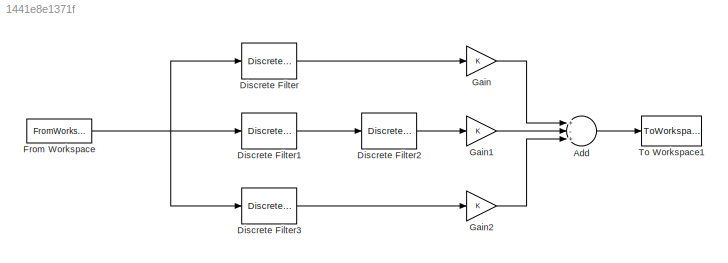
MODEL slx_1441e8e1371f
KIND model
CONFIG AbsTol = auto
CONFIG FixedStep = auto
CONFIG MaxStep = auto
CONFIG MinStep = auto
CONFIG RelTol = 1e-3
CONFIG SampleTimeConstraint = Unconstrained
CONFIG Solver = ode45
CONFIG SolverMode = Auto
CONFIG SolverName = ode45
CONFIG StartTime = 0.0
CONFIG StopTime = 10.0
BLOCK [Sum] Add
  InputSameDT = off
  Inputs = +-+
  OutDataTypeStr = Inherit: Inherit via internal rule
  Ports = [3, 1]
  SaturateOnIntegerOverflow = off
BLOCK [DiscreteFilter] Discrete Filter
  Denominator = denF1
  FilterStructure = Direct form I
  InputPortMap = u0
  InputProcessing = Columns as channels (frame based)
  Numerator = numF1
  Ports = [1, 1]
  SampleTime = 44100
BLOCK [DiscreteFilter] Discrete Filter1
  Denominator = denF2
  FilterStructure = Direct form I
  InputPortMap = u0
  InputProcessing = Columns as channels (frame based)
  Numerator = numF2
  Ports = [1, 1]
  SampleTime = 44100
BLOCK [DiscreteFilter] Discrete Filter2
  Denominator = denF3
  FilterStructure = Direct form I
  InputPortMap = u0
  InputProcessing = Columns as channels (frame based)
  Numerator = numF3
  Ports = [1, 1]
  SampleTime = 44100
BLOCK [DiscreteFilter] Discrete Filter3
  Denominator = denF4
  FilterStructure = Direct form I
  InputPortMap = u0
  InputProcessing = Columns as channels (frame based)
  Numerator = numF4
  Ports = [1, 1]
  SampleTime = 44100
BLOCK [FromWorkspace] From Workspace
  SampleTime = 1
  VariableName = Xtot
  ZeroCross = on
BLOCK [Gain] Gain
  OutDataTypeStr = Inherit: Inherit via internal rule
  ParamDataTypeStr = Inherit: Inherit via internal rule
  SaturateOnIntegerOverflow = off
BLOCK [Gain] Gain1
  OutDataTypeStr = Inherit: Inherit via internal rule
  ParamDataTypeStr = Inherit: Inherit via internal rule
  SaturateOnIntegerOverflow = off
BLOCK [Gain] Gain2
  OutDataTypeStr = Inherit: Inherit via internal rule
  ParamDataTypeStr = Inherit: Inherit via internal rule
  SaturateOnIntegerOverflow = off
BLOCK [ToWorkspace] To Workspace1
  MaxDataPoints = inf
  Ports = [1]
  SampleTime = -1
  VariableName = Yint
LINE Add:1 -> To Workspace1:1
LINE Discrete Filter1:1 -> Discrete Filter2:1
LINE Discrete Filter2:1 -> Gain1:1
LINE Discrete Filter3:1 -> Gain2:1
LINE Discrete Filter:1 -> Gain:1
NET From Workspace:1 -> Discrete Filter1:1, Discrete Filter3:1, Discrete Filter:1
LINE Gain1:1 -> Add:2
LINE Gain2:1 -> Add:3
LINE Gain:1 -> Add:1
note: NET lines group one-source signal fan-out (src -> all destinations, sorted); 1:1 wires keep LINE
